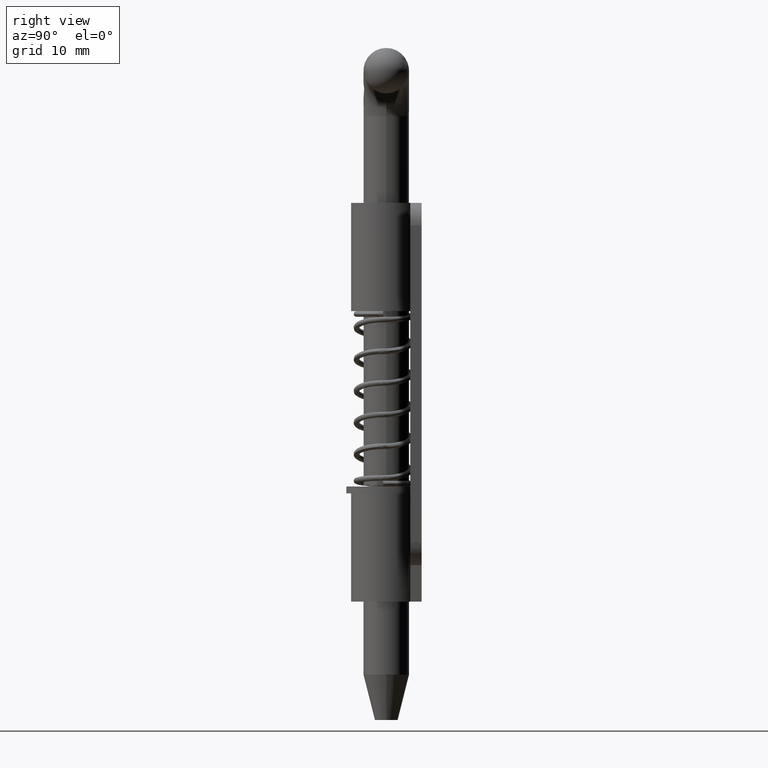
[diagram: clean part render]
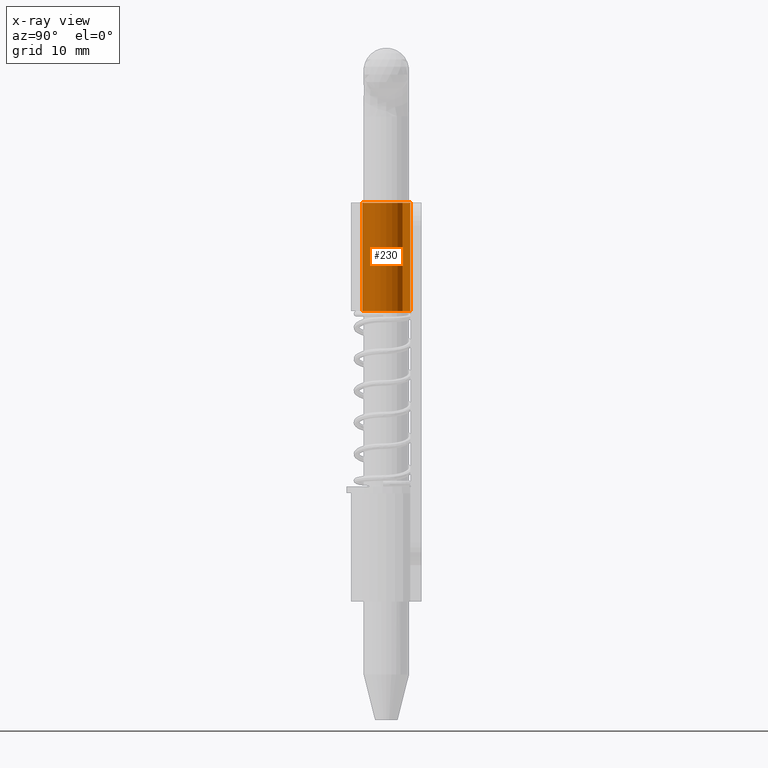
[diagram: x-ray — body ghosted, one internal face saturated and labeled with its STEP entity id]
A machine part, right view, then the same camera in x-ray: the body is ghosted and one INTERNAL B-rep face — a face not visible from any outside direction — is saturated and labeled: STEP entity #230.
In plain terms, the highlighted cylindrical surface (edge-blend (fillet) strip) has radius 2.1 mm, axis along (0, 0, 1).
Its self-contained STEP definition (entity closure, byte-faithful):
#230=ADVANCED_FACE('',(#1052),#1051,.F.);
#1051=CYLINDRICAL_SURFACE('',#3066,2.09999999995E+00);
#1052=FACE_OUTER_BOUND('',#3067,.T.);
#3063=CARTESIAN_POINT('',(0.00000000000E+00,-2.84217094304E-14,-4.75000000000E+00));
#3064=DIRECTION('',(-0.00000000000E+00,-0.00000000000E+00,1.00000000000E+00));
#3065=DIRECTION('',(4.14693242656E-01,9.09961270877E-01,0.00000000000E+00));
#3066=AXIS2_PLACEMENT_3D('',#3063,#3064,#3065);
#3067=EDGE_LOOP('',(#3507,#3508,#3509,#3510));
#3507=ORIENTED_EDGE('',*,*,#3744,.F.);
#3508=ORIENTED_EDGE('',*,*,#3698,.F.);
#3509=ORIENTED_EDGE('',*,*,#3748,.F.);
#3510=ORIENTED_EDGE('',*,*,#3741,.T.);
#3698=EDGE_CURVE('',#4838,#4845,#4846,.T.);
#3741=EDGE_CURVE('',#5136,#5129,#5137,.T.);
#3744=EDGE_CURVE('',#4845,#5129,#5155,.T.);
#3748=EDGE_CURVE('',#5136,#4838,#5179,.T.);
#4838=VERTEX_POINT('',#6121);
#4845=VERTEX_POINT('',#6125);
#4846=LINE('',#6126,#6127);
#5129=VERTEX_POINT('',#6299);
#5136=VERTEX_POINT('',#6303);
#5137=LINE('',#6304,#6305);
#5155=CIRCLE('',#6316,2.09999999995E+00);
#5179=CIRCLE('',#6329,2.09999999995E+00);
#6121=CARTESIAN_POINT('',(-4.26325641456E-14,2.09999999995E+00,0.00000000000E+00));
#6125=CARTESIAN_POINT('',(-4.26325641456E-14,2.09999999995E+00,-9.50000000000E+00));
#6126=CARTESIAN_POINT('',(-4.26325641456E-14,2.09999999995E+00,0.00000000000E+00));
#6127=VECTOR('',#6128,9.50000000000E+00);
#6128=DIRECTION('',(0.00000000000E+00,0.00000000000E+00,-1.00000000000E+00));
#6299=CARTESIAN_POINT('',(1.54525052961E+00,1.42204106852E+00,-9.50000000000E+00));
#6303=CARTESIAN_POINT('',(1.54525052961E+00,1.42204106852E+00,0.00000000000E+00));
#6304=CARTESIAN_POINT('',(1.54525052961E+00,1.42204106852E+00,0.00000000000E+00));
#6305=VECTOR('',#6306,9.50000000000E+00);
#6306=DIRECTION('',(0.00000000000E+00,0.00000000000E+00,-1.00000000000E+00));
#6313=CARTESIAN_POINT('',(0.00000000000E+00,-2.84217094304E-14,-9.50000000000E+00));
#6314=DIRECTION('',(0.00000000000E+00,0.00000000000E+00,1.00000000000E+00));
#6315=DIRECTION('',(-2.01787603868E-14,1.00000000000E+00,0.00000000000E+00));
#6316=AXIS2_PLACEMENT_3D('',#6313,#6314,#6315);
#6326=CARTESIAN_POINT('',(0.00000000000E+00,-2.84217094304E-14,0.00000000000E+00));
#6327=DIRECTION('',(0.00000000000E+00,0.00000000000E+00,-1.00000000000E+00));
#6328=DIRECTION('',(7.35833585544E-01,6.77162413595E-01,0.00000000000E+00));
#6329=AXIS2_PLACEMENT_3D('',#6326,#6327,#6328);